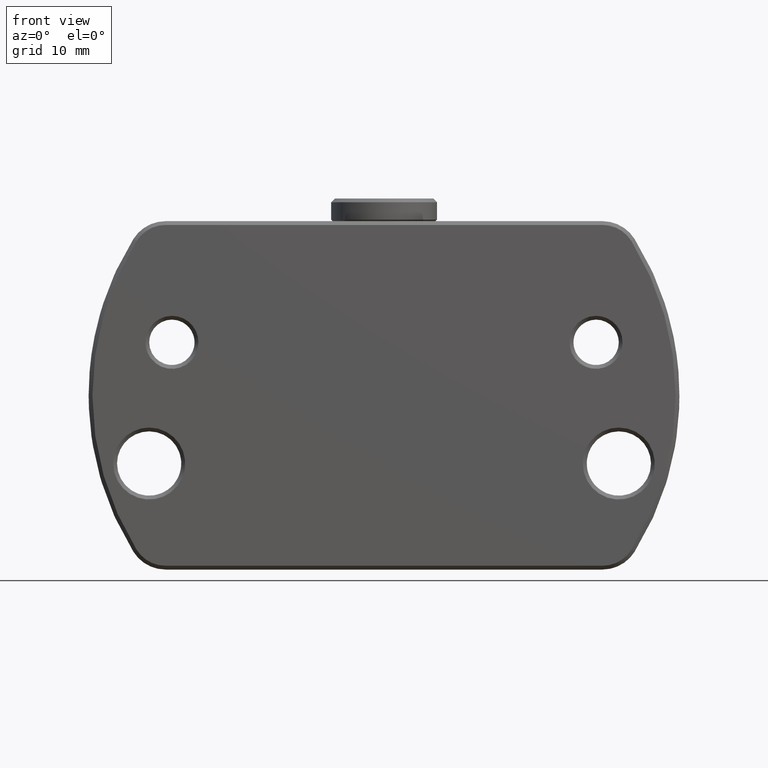
[diagram: clean part render]
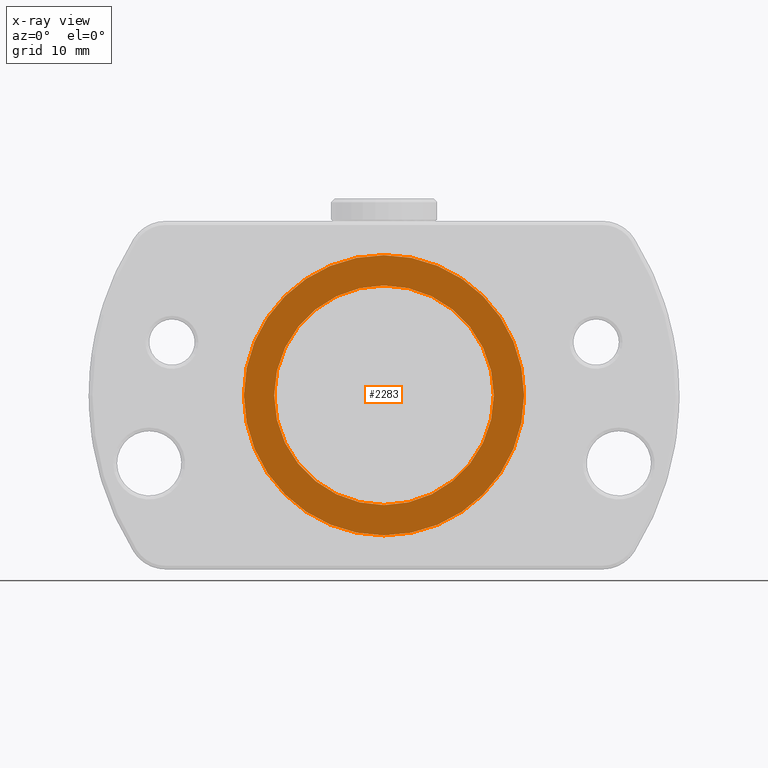
[diagram: x-ray — body ghosted, one internal face saturated and labeled with its STEP entity id]
A machine part, front view, then the same camera in x-ray: the body is ghosted and one INTERNAL B-rep face — a face not visible from any outside direction — is saturated and labeled: STEP entity #2283.
In plain terms, the highlighted planar face has unit normal (0, -1, 0).
Its self-contained STEP definition (entity closure, byte-faithful):
#157=FACE_BOUND('',#388,.T.);
#245=FACE_OUTER_BOUND('',#387,.T.);
#387=EDGE_LOOP('',(#1895,#1896));
#388=EDGE_LOOP('',(#1897,#1898));
#560=CIRCLE('',#2619,18.49999773886);
#561=CIRCLE('',#2620,18.49999773886);
#562=CIRCLE('',#2621,14.5000036965665);
#563=CIRCLE('',#2622,14.5000036965665);
#1046=VERTEX_POINT('',#4035);
#1047=VERTEX_POINT('',#4036);
#1048=VERTEX_POINT('',#4039);
#1049=VERTEX_POINT('',#4040);
#1350=EDGE_CURVE('',#1046,#1047,#560,.T.);
#1351=EDGE_CURVE('',#1047,#1046,#561,.T.);
#1352=EDGE_CURVE('',#1048,#1049,#562,.T.);
#1353=EDGE_CURVE('',#1049,#1048,#563,.T.);
#1895=ORIENTED_EDGE('',*,*,#1350,.T.);
#1896=ORIENTED_EDGE('',*,*,#1351,.T.);
#1897=ORIENTED_EDGE('',*,*,#1352,.F.);
#1898=ORIENTED_EDGE('',*,*,#1353,.F.);
#2187=PLANE('',#2618);
#2283=ADVANCED_FACE('',(#245,#157),#2187,.T.);
#2618=AXIS2_PLACEMENT_3D('',#4034,#3252,#3253);
#2619=AXIS2_PLACEMENT_3D('',#4037,#3254,#3255);
#2620=AXIS2_PLACEMENT_3D('',#4038,#3256,#3257);
#2621=AXIS2_PLACEMENT_3D('',#4041,#3258,#3259);
#2622=AXIS2_PLACEMENT_3D('',#4042,#3260,#3261);
#3252=DIRECTION('center_axis',(0.,-1.,0.));
#3253=DIRECTION('ref_axis',(-1.,0.,0.));
#3254=DIRECTION('center_axis',(0.,-1.,0.));
#3255=DIRECTION('ref_axis',(-1.,0.,0.));
#3256=DIRECTION('center_axis',(0.,-1.,0.));
#3257=DIRECTION('ref_axis',(-1.,0.,0.));
#3258=DIRECTION('center_axis',(0.,-1.,0.));
#3259=DIRECTION('ref_axis',(0.,0.,-1.));
#3260=DIRECTION('center_axis',(0.,-1.,0.));
#3261=DIRECTION('ref_axis',(0.,0.,-1.));
#4034=CARTESIAN_POINT('Origin',(0.,0.,0.));
#4035=CARTESIAN_POINT('',(18.49999773886,6.420807744811E-7,0.));
#4036=CARTESIAN_POINT('',(2.88025546463229E-14,6.42080091491082E-7,18.4999977388607));
#4037=CARTESIAN_POINT('Origin',(2.649103389779E-14,6.420807778795E-7,0.));
#4038=CARTESIAN_POINT('Origin',(2.649103389779E-14,6.420807778795E-7,0.));
#4039=CARTESIAN_POINT('',(14.5000036965664,0.,-8.7319461671908E-21));
#4040=CARTESIAN_POINT('',(-9.32112624911225E-14,5.55111512312578E-16,14.5000036965665));
#4041=CARTESIAN_POINT('Origin',(-9.143552417966E-14,0.,4.440892098501E-14));
#4042=CARTESIAN_POINT('Origin',(-9.143552417966E-14,0.,4.440892098501E-14));